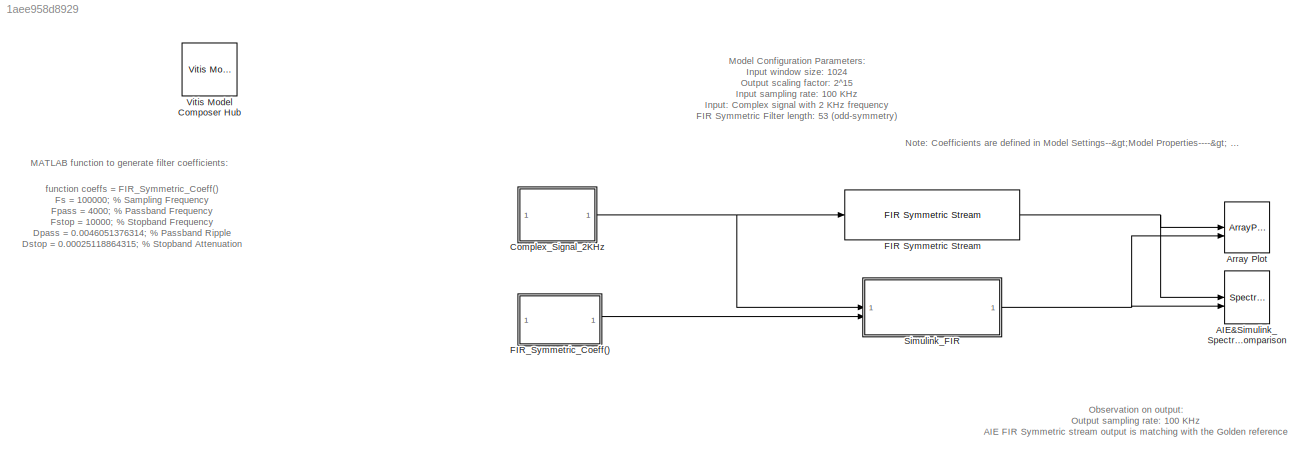
MODEL slx_1aee958d8929
KIND model
CONFIG AbsTol = auto
CONFIG EnableMultiTasking = off
CONFIG FixedStep = auto
CONFIG InitFcn = Fs = 100000;  % Sampling Frequency\nFpass = 4000;              % Passband Frequency\nFstop = 10000;             % Stopband Frequency\nDpass = 0.0046051376314;   % Passband Ripple\nDstop = 0.00025118864315;  % Stopband Attenuation\ndens  = 16;                % Density Factor\n% Calculate the order from the parameters using FIRPMORD.\n[N, Fo, Ao, W] = firpmord([Fpass, Fstop]/(Fs/2), [1 0], [Dpass, Dstop]);...<+93ch>
CONFIG MaxStep = auto
CONFIG MinStep = auto
CONFIG PostLoadFcn = Fs = 100000;  % Sampling Frequency\nFpass = 4000;              % Passband Frequency\nFstop = 10000;             % Stopband Frequency\nDpass = 0.0046051376314;   % Passband Ripple\nDstop = 0.00025118864315;  % Stopband Attenuation\ndens  = 16;                % Density Factor\n% Calculate the order from the parameters using FIRPMORD.\n[N, Fo, Ao, W] = firpmord([Fpass, Fstop]/(Fs/2), [1 0], [Dpass, Dstop]);...<+93ch>
CONFIG RelTol = 1e-3
CONFIG SampleTimeConstraint = Unconstrained
CONFIG SolverName = VariableStepAuto
CONFIG StartTime = 0.0
CONFIG StopTime = 1
BLOCK [SpectrumAnalyzer] AIE&Simulink_Spectrum_Comparison
  AllowFFTLengthLessThanSamplesPerUpdate = on
  AveragingMethod = Exponential
  ChannelNames = [""]
  DefaultConfigurationName = spbscopes.SpectrumAnalyzerBlockCfg
  GraphicalSettings = {"GraphicalSettings":{"Style":{"BackgroundColor":[0.12941176470588237,0.12941176470588237,0.12941176470588237],"AxesColor":[0.07058823529411765,0.07058823529411765,0.07058823529411765],"LabelsColor":[0.8509803921568627,0.8509803921568627,0.8509803921568627],"PreserveColors":false,"Visible":[true,true],"LineStyle":["-","-"],"LineColor":[[1,0.9098039215686274,0.39215686274509803],[0.1490196078431372...<+1026ch>
  NumInputPorts = 2
  ScopeFrameLocation = window
  ScopeSpecificationString = spbscopes.SpectrumAnalyzerBlockCfg('CurrentConfiguration', extmgr.ConfigurationSet(extmgr.Configuration('Core','General UI',true,'FigureColor',[0.16        0.16        0.16]),extmgr.Configuration('Visuals','Spectrum',true,'Title','','YLabel','','MinYLim','26.2813','MaxYLim','124.0582','Legend',true,'AxesProperties',struct('XGrid',{'on','on'},'YGrid',{'on','on'},'ZGrid',{'on','on'},'Color',{[0 0 0]...<+2399ch>
  ShowLegend = on
  Span = 99999.99999999999
  StartFrequency = -49999.99999999999
  StopFrequency = 49999.99999999999
  Visible = on
  WasSavedAsWebScope = on
  WindowPosition = [560.000000,350.000000,800.000000,500.000000,]
  YLimits = [-4.47944505,122.1232277]
BLOCK [ArrayPlot] Array Plot
  GraphicalSettings = {"Style":{"BackgroundColor":[0.12941176470588237,0.12941176470588237,0.12941176470588237],"AxesColor":[0.07058823529411765,0.07058823529411765,0.07058823529411765],"LabelsColor":[0.8509803921568627,0.8509803921568627,0.8509803921568627],"PreserveColors":false,"Visible":[true,true,true,true],"LineStyle":["-","-","-","-"],"LineColor":[[1,0.9098039215686274,0.39215686274509803],[0.14901960784313725,0...<+794ch>
  NumInputPorts = 2
  PlotType = Line
  ScopeFrameLocation = window
  ShowLegend = on
  Visible = on
  WasSavedAsWebScope = on
  WindowPosition = [565.000000,321.000000,800.000000,500.000000,]
  YLimits = [-20287.625 20318.625]
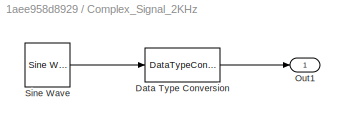
BLOCK [SubSystem] Complex_Signal_2KHz
BLOCK [DataTypeConversion] Complex_Signal_2KHz/Data Type Conversion
  ConvertRealWorld = Stored Integer (SI)
  OutDataTypeStr = int16
  OutMax = [1]
  OutMin = [-1]
  RndMeth = Floor
  SaturateOnIntegerOverflow = off
BLOCK [Outport] Complex_Signal_2KHz/Out1
BLOCK [Reference] Complex_Signal_2KHz/Sine Wave  REF=dspsrcs4/Sine Wave
  SourceBlock = dspsrcs4/Sine Wave
  SourceType = Sine Wave
BLOCK [Reference] FIR Symmetric Stream  REF=aieDSP/FIR Symmetric Stream
  SourceBlock = aieDSP/FIR Symmetric Stream
  SourceType = FIR Symmetric Stream
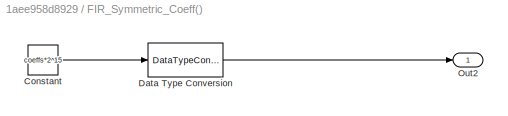
BLOCK [SubSystem] FIR_Symmetric_Coeff()
BLOCK [Constant] FIR_Symmetric_Coeff()/Constant
  Value = coeffs*2^15
BLOCK [DataTypeConversion] FIR_Symmetric_Coeff()/Data Type Conversion
  ConvertRealWorld = Stored Integer (SI)
  OutDataTypeStr = int16
  OutMax = [1]
  OutMin = [-1]
  RndMeth = Floor
  SaturateOnIntegerOverflow = off
BLOCK [Outport] FIR_Symmetric_Coeff()/Out2
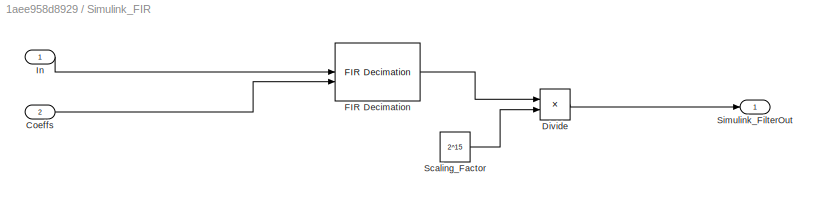
BLOCK [SubSystem] Simulink_FIR
BLOCK [Inport] Simulink_FIR/Coeffs
  Port = 2
BLOCK [Product] Simulink_FIR/Divide
  Inputs = */
  OutDataTypeStr = int16
BLOCK [Reference] Simulink_FIR/FIR Decimation  REF=dspmlti4/FIR
Decimation
  SourceBlock = dspmlti4/FIR\nDecimation
  SourceType = FIR Decimation
  UserDataPersistent = on
BLOCK [Inport] Simulink_FIR/In
BLOCK [Constant] Simulink_FIR/Scaling_Factor
  OutDataTypeStr = int32
  Value = 2^15
BLOCK [Outport] Simulink_FIR/Simulink_FilterOut
BLOCK [Reference] Vitis Model Composer Hub  REF=vmcUtilities/Vitis Model Composer Hub
  SourceBlock = vmcUtilities/Vitis Model Composer Hub
  SourceType = VMC Hub
  Tag = genX
  UserDataPersistent = on
ANNOTATION (root): function coeffs = FIR_Symmetric_Coeff() Fs = 100000; % Sampling Frequency Fpass = 4000; % Passband Frequency Fstop = 10000; % Stopband Frequency Dpass = 0.0046051376314; % Passband Ripple Dstop = 0.00025118864315; % Stopband Attenuation dens = 16; % Density Factor % Calculate the order from the parameters using FIRPMORD. [N, Fo, Ao, W] = firpmord([Fpass, Fstop]/(Fs/2), [1 0], [Dpass, Dstop]); % Ca...<+92ch>
ANNOTATION (root): MATLAB function to generate filter coefficients:
ANNOTATION (root): Model Configuration Parameters: Input window size: 1024 Output scaling factor: 2^15 Input sampling rate: 100 KHz Input: Complex signal with 2 KHz frequency FIR Symmetric Filter length: 53 (odd-symmetry)
ANNOTATION (root): Observation on output: Output sampling rate: 100 KHz AIE FIR Symmetric stream output is matching with the Golden reference
ANNOTATION (root): Note : Coefficients are defined in Model Settings-->Model Properties----> Callbacks---> InitFcn
LINE Complex_Signal_2KHz/Data Type Conversion:1 -> Complex_Signal_2KHz/Out1:1
LINE Complex_Signal_2KHz/Sine Wave:1 -> Complex_Signal_2KHz/Data Type Conversion:1
NET Complex_Signal_2KHz:1 -> FIR Symmetric Stream:1, Simulink_FIR:1
NET FIR Symmetric Stream:1 -> AIE&Simulink_Spectrum_Comparison:1, Array Plot:1
LINE FIR_Symmetric_Coeff()/Constant:1 -> FIR_Symmetric_Coeff()/Data Type Conversion:1
LINE FIR_Symmetric_Coeff()/Data Type Conversion:1 -> FIR_Symmetric_Coeff()/Out2:1
LINE FIR_Symmetric_Coeff():1 -> Simulink_FIR:2
LINE Simulink_FIR/Coeffs:1 -> Simulink_FIR/FIR Decimation:2
LINE Simulink_FIR/Divide:1 -> Simulink_FIR/Simulink_FilterOut:1
LINE Simulink_FIR/FIR Decimation:1 -> Simulink_FIR/Divide:1
LINE Simulink_FIR/In:1 -> Simulink_FIR/FIR Decimation:1
LINE Simulink_FIR/Scaling_Factor:1 -> Simulink_FIR/Divide:2
NET Simulink_FIR:1 -> AIE&Simulink_Spectrum_Comparison:2, Array Plot:2
note: NET lines group one-source signal fan-out (src -> all destinations, sorted); 1:1 wires keep LINE
